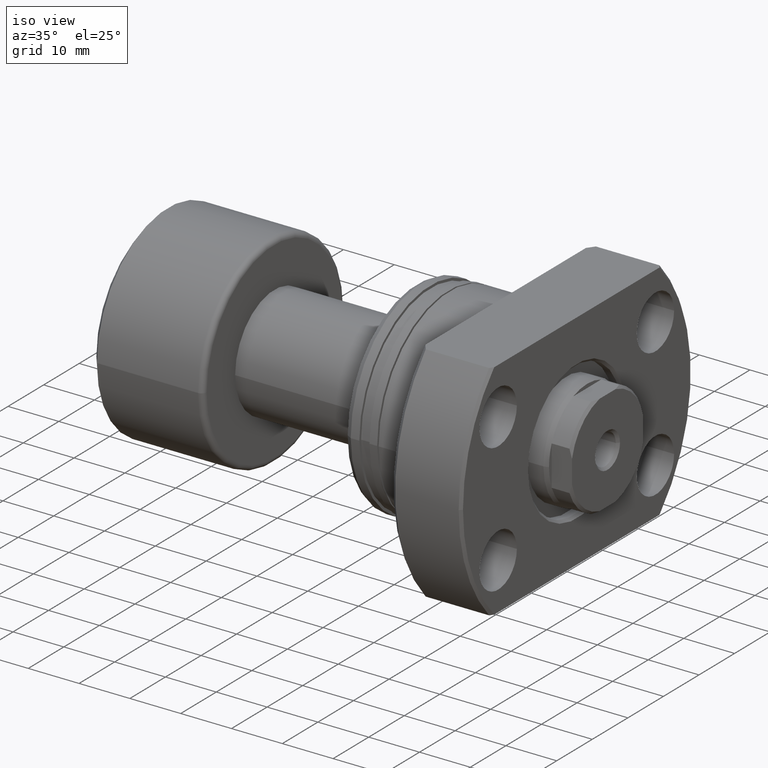
[diagram: clean part render]
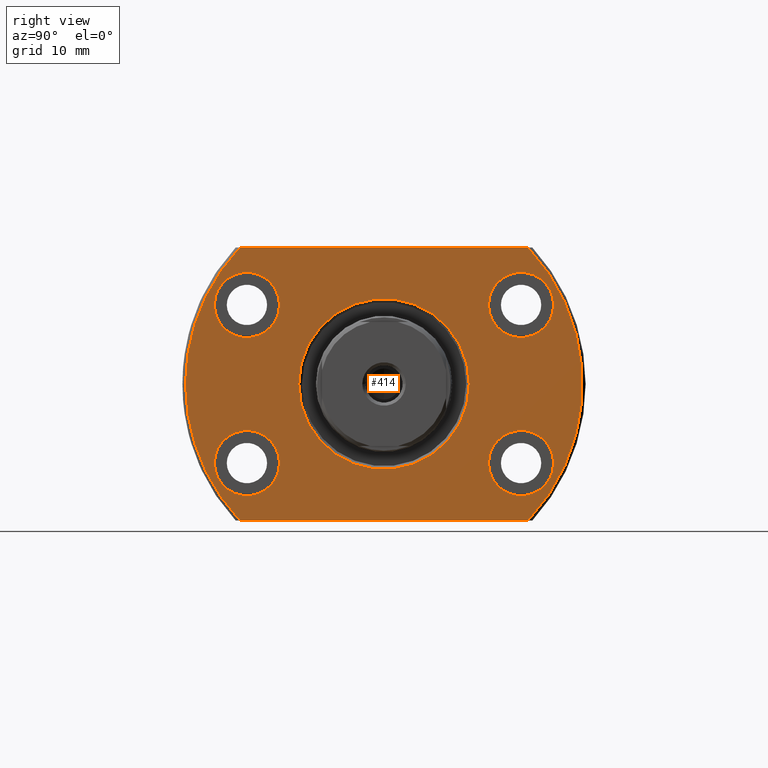
[diagram: tour spotlight — one face highlighted and labeled with its STEP entity id]
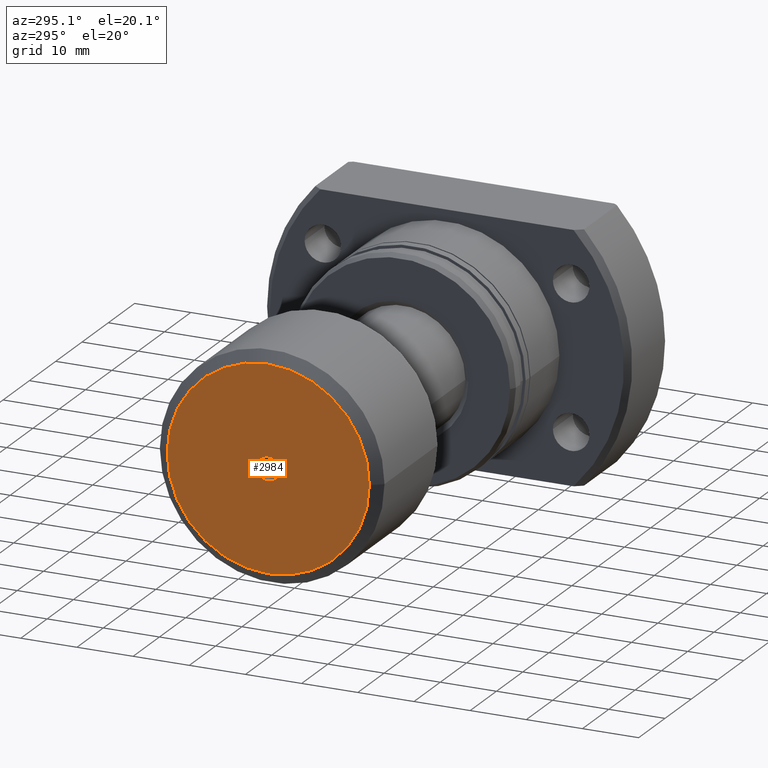
[diagram: tour spotlight — one face highlighted and labeled with its STEP entity id]
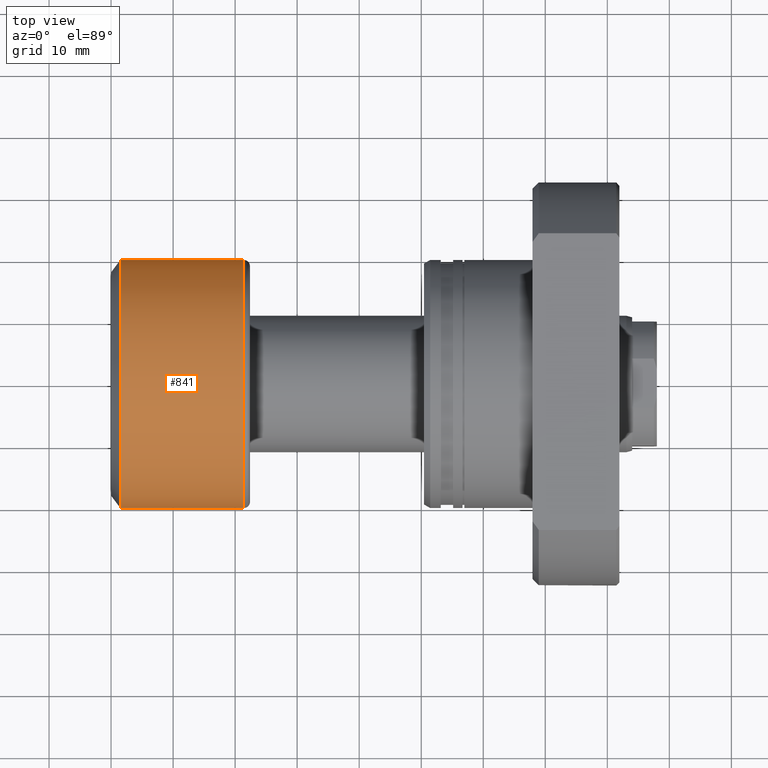
[diagram: tour spotlight — one face highlighted and labeled with its STEP entity id]
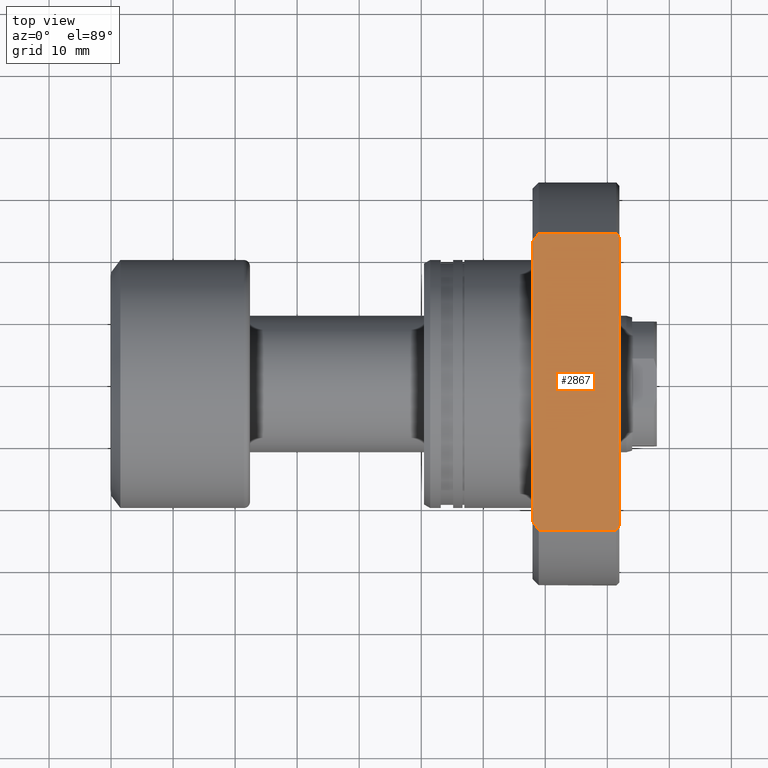
[diagram: tour spotlight — one face highlighted and labeled with its STEP entity id]
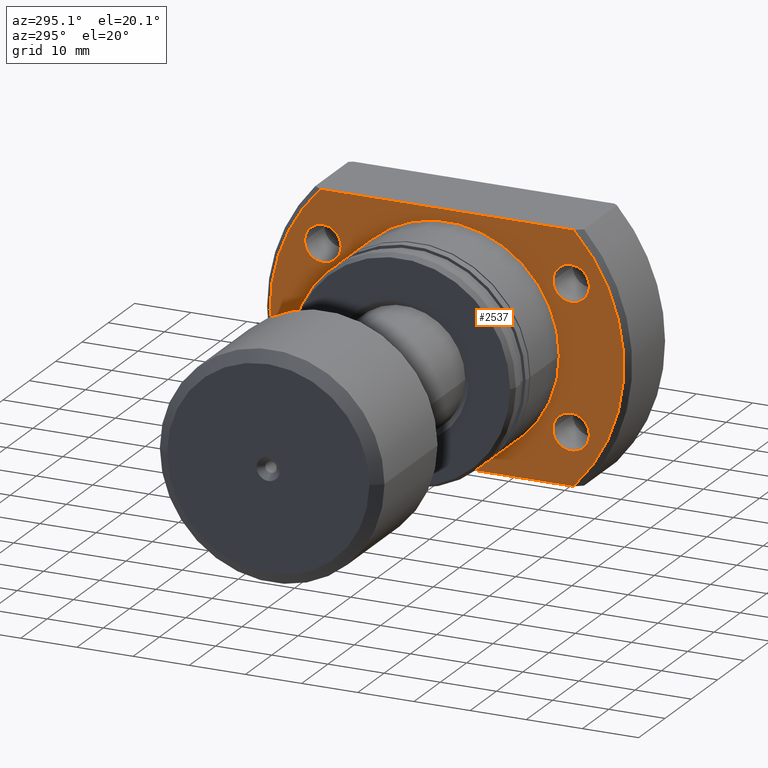
[diagram: tour spotlight — one face highlighted and labeled with its STEP entity id]
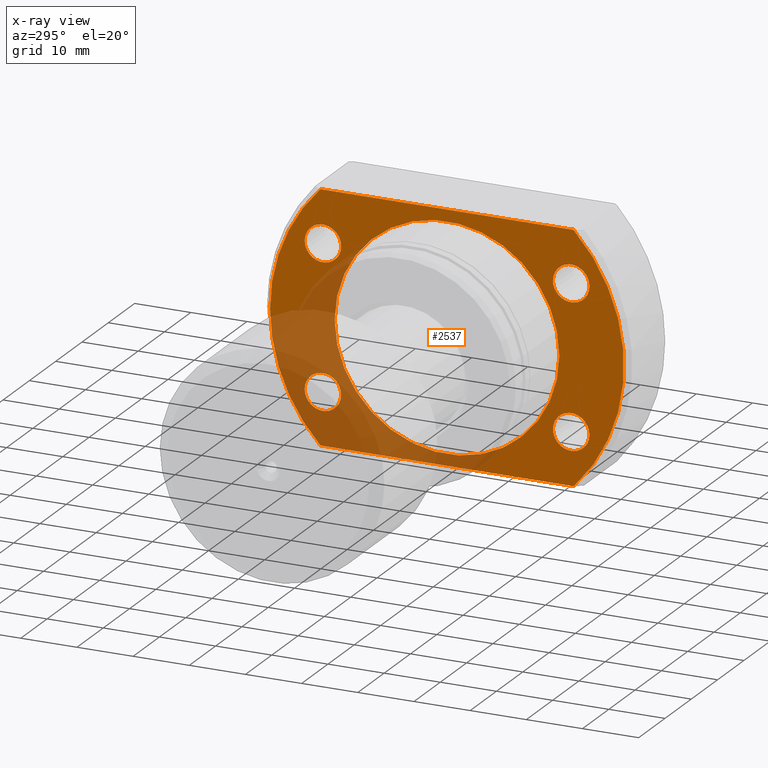
[diagram: x-ray of the same camera — body ghosted, this tour face saturated]
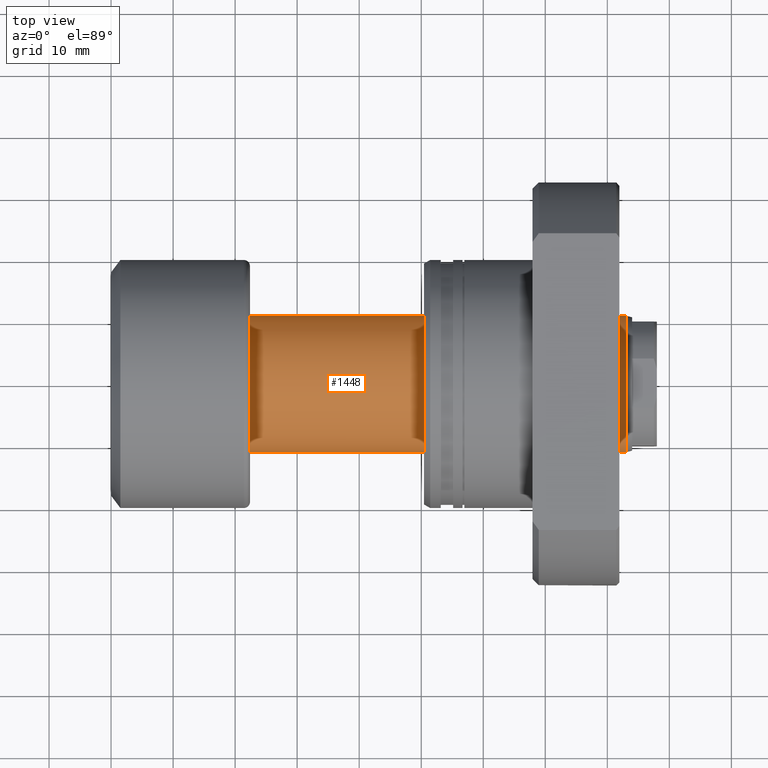
[diagram: tour spotlight — one face highlighted and labeled with its STEP entity id]
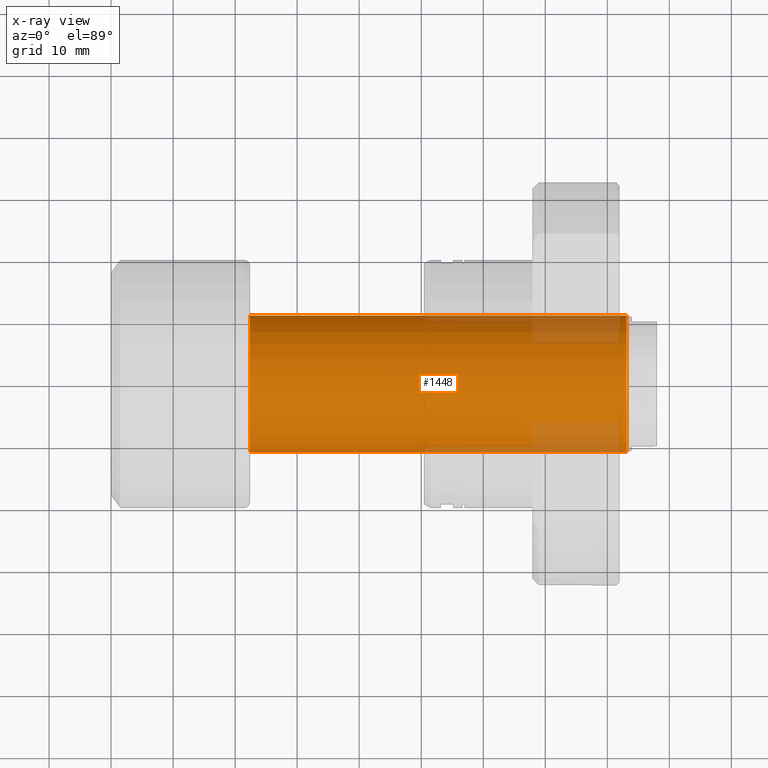
[diagram: x-ray of the same camera — body ghosted, this tour face saturated]
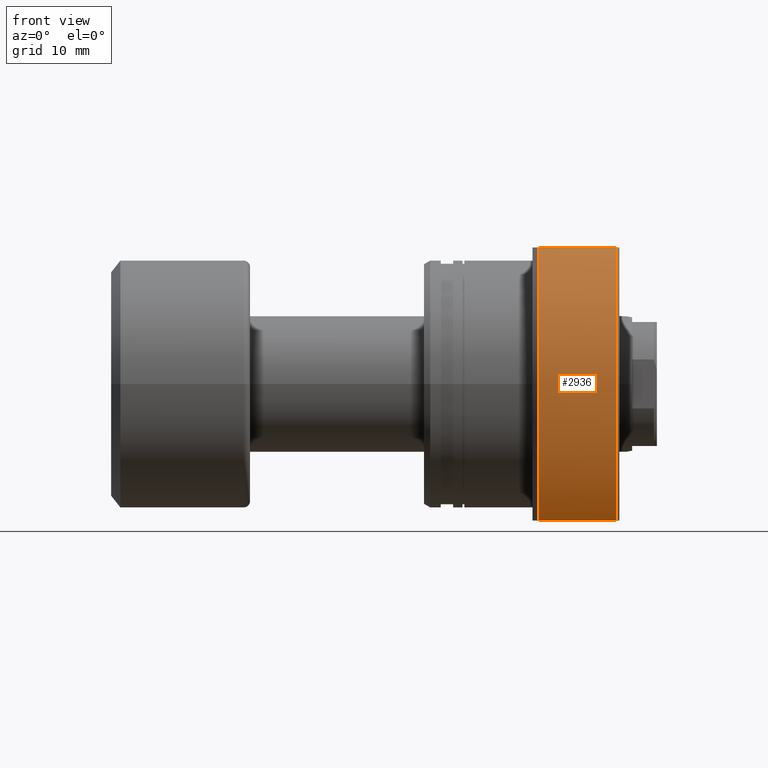
[diagram: tour spotlight — one face highlighted and labeled with its STEP entity id]
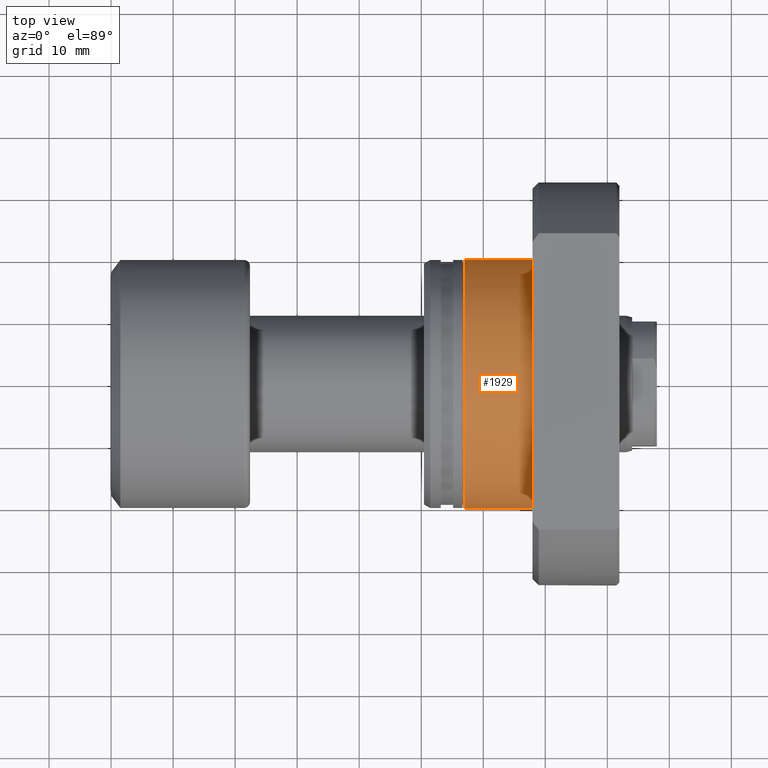
[diagram: tour spotlight — one face highlighted and labeled with its STEP entity id]
A machine part: a face-by-face anatomy tour. The part has 103 B-rep faces; the first image is the clean iso view, then the 8 largest visible faces are spotlighted one at a time (largest first), each with its STEP entity span.

Face 1 — right view, entity #414. In plain terms, the highlighted planar face has unit normal (-1, -0, 0).
Definition (entity closure, byte-faithful):
#7 = AXIS2_PLACEMENT_3D ( 'NONE', #1201, #2640, #1957 ) ;
#30 = DIRECTION ( 'NONE',  ( 1.000000000000000000, -2.887798767815668620E-14, -6.310887241768094443E-30 ) ) ;
#70 = DIRECTION ( 'NONE',  ( 1.000000000000000000, 2.721437331438560389E-17, -0.000000000000000000 ) ) ;
#72 = VERTEX_POINT ( 'NONE', #918 ) ;
#95 = EDGE_LOOP ( 'NONE', ( #1959, #946 ) ) ;
#125 = CARTESIAN_POINT ( 'NONE',  ( 31.50000000000000000, 23.23790007724450035, 22.00000000000000355 ) ) ;
#163 = AXIS2_PLACEMENT_3D ( 'NONE', #2608, #70, #1339 ) ;
#166 = ORIENTED_EDGE ( 'NONE', *, *, #1843, .F. ) ;
#183 = ORIENTED_EDGE ( 'NONE', *, *, #1244, .T. ) ;
#189 = DIRECTION ( 'NONE',  ( -1.000000000000000000, -2.721437331438560389E-17, 0.000000000000000000 ) ) ;
#208 = LINE ( 'NONE', #243, #265 ) ;
#214 = DIRECTION ( 'NONE',  ( -1.000000000000000000, -2.721437331438560389E-17, 0.000000000000000000 ) ) ;
#217 = VERTEX_POINT ( 'NONE', #2496 ) ;
#236 = ORIENTED_EDGE ( 'NONE', *, *, #2525, .F. ) ;
#243 = CARTESIAN_POINT ( 'NONE',  ( 31.50000000000000000, -32.00000000000000000, -22.00000000000000355 ) ) ;
#265 = VECTOR ( 'NONE', #2719, 1000.000000000000000 ) ;
#281 = VERTEX_POINT ( 'NONE', #787 ) ;
#294 = ORIENTED_EDGE ( 'NONE', *, *, #1725, .F. ) ;
#314 = CIRCLE ( 'NONE', #1145, 5.250000000000000888 ) ;
#414 = ADVANCED_FACE ( 'NONE', ( #1413, #1672, #1190, #2721, #3179, #496 ), #953, .F. ) ;
#429 = AXIS2_PLACEMENT_3D ( 'NONE', #2185, #189, #1405 ) ;
#431 = CIRCLE ( 'NONE', #2240, 5.250000000000000888 ) ;
#493 = ORIENTED_EDGE ( 'NONE', *, *, #1942, .T. ) ;
#496 = FACE_OUTER_BOUND ( 'NONE', #2519, .T. ) ;
#509 = VERTEX_POINT ( 'NONE', #1174 ) ;
#517 = DIRECTION ( 'NONE',  ( 2.907726969256361977E-14, 1.000000000000000000, 0.000000000000000000 ) ) ;
#573 = ORIENTED_EDGE ( 'NONE', *, *, #2699, .F. ) ;
#629 = VERTEX_POINT ( 'NONE', #741 ) ;
#637 = EDGE_CURVE ( 'NONE', #2166, #1523, #2329, .T. ) ;
#649 = VERTEX_POINT ( 'NONE', #756 ) ;
#669 = DIRECTION ( 'NONE',  ( 2.907726969256361977E-14, 1.000000000000000000, 0.000000000000000000 ) ) ;
#708 = ORIENTED_EDGE ( 'NONE', *, *, #637, .F. ) ;
#733 = EDGE_LOOP ( 'NONE', ( #236, #573 ) ) ;
#738 = AXIS2_PLACEMENT_3D ( 'NONE', #921, #1200, #1905 ) ;
#741 = CARTESIAN_POINT ( 'NONE',  ( 31.49999999999920774, -27.35000000000091092, -12.75000000000000178 ) ) ;
#756 = CARTESIAN_POINT ( 'NONE',  ( 31.50000000000000000, -23.23790007724450035, -22.00000000000000355 ) ) ;
#765 = CARTESIAN_POINT ( 'NONE',  ( 31.50000000000063949, 22.09999999999909193, 12.74999999999999822 ) ) ;
#767 = EDGE_LOOP ( 'NONE', ( #1458, #869 ) ) ;
#787 = CARTESIAN_POINT ( 'NONE',  ( 31.50000000000000000, -23.23790007724449680, 22.00000000000000355 ) ) ;
#801 = CARTESIAN_POINT ( 'NONE',  ( 31.50000000000079226, 27.34999999999909548, -12.75000000000000178 ) ) ;
#808 = DIRECTION ( 'NONE',  ( 1.000000000000000000, -2.887798767815668620E-14, -6.310887241768094443E-30 ) ) ;
#821 = EDGE_CURVE ( 'NONE', #509, #1223, #2022, .T. ) ;
#853 = CARTESIAN_POINT ( 'NONE',  ( 31.50000000000000000, 23.92174742781217489, 22.00000000000000355 ) ) ;
#869 = ORIENTED_EDGE ( 'NONE', *, *, #821, .F. ) ;
#918 = CARTESIAN_POINT ( 'NONE',  ( 31.50000000000000000, -32.00000000000000000, 0.000000000000000000 ) ) ;
#921 = CARTESIAN_POINT ( 'NONE',  ( 31.49999999999936051, -22.10000000000091092, 12.74999999999999822 ) ) ;
#927 = CARTESIAN_POINT ( 'NONE',  ( 31.50000000000000000, -13.75000000000088107, 1.683889348827607301E-15 ) ) ;
#938 = EDGE_CURVE ( 'NONE', #281, #2900, #1622, .T. ) ;
#946 = ORIENTED_EDGE ( 'NONE', *, *, #3030, .T. ) ;
#953 = PLANE ( 'NONE',  #2643 ) ;
#975 = DIRECTION ( 'NONE',  ( -1.000000000000000000, -2.721437331438560389E-17, 0.000000000000000000 ) ) ;
#995 = DIRECTION ( 'NONE',  ( 1.000000000000000000, -2.886466111666351885E-14, 0.000000000000000000 ) ) ;
#1016 = DIRECTION ( 'NONE',  ( 1.000000000000000000, 2.721437331438560389E-17, -0.000000000000000000 ) ) ;
#1078 = VERTEX_POINT ( 'NONE', #927 ) ;
#1079 = CARTESIAN_POINT ( 'NONE',  ( 31.50000000000048672, 16.84999999999909193, 12.74999999999999822 ) ) ;
#1141 = ORIENTED_EDGE ( 'NONE', *, *, #3044, .T. ) ;
#1145 = AXIS2_PLACEMENT_3D ( 'NONE', #2159, #2896, #669 ) ;
#1174 = CARTESIAN_POINT ( 'NONE',  ( 31.50000000000048672, 16.84999999999909193, -12.75000000000000178 ) ) ;
#1183 = DIRECTION ( 'NONE',  ( 0.000000000000000000, -1.000000000000000000, 0.000000000000000000 ) ) ;
#1190 = FACE_BOUND ( 'NONE', #2091, .T. ) ;
#1200 = DIRECTION ( 'NONE',  ( 1.000000000000000000, -2.887798767815668620E-14, -6.310887241768094443E-30 ) ) ;
#1201 = CARTESIAN_POINT ( 'NONE',  ( 31.50000000000000000, 8.572527594031465301E-16, 0.000000000000000000 ) ) ;
#1220 = CARTESIAN_POINT ( 'NONE',  ( 31.50000000000000000, 23.23790007724450035, -22.00000000000000355 ) ) ;
#1223 = VERTEX_POINT ( 'NONE', #801 ) ;
#1238 = DIRECTION ( 'NONE',  ( 2.907726969256361977E-14, 1.000000000000000000, 0.000000000000000000 ) ) ;
#1244 = EDGE_CURVE ( 'NONE', #281, #72, #1764, .T. ) ;
#1249 = AXIS2_PLACEMENT_3D ( 'NONE', #2169, #995, #1238 ) ;
#1256 = DIRECTION ( 'NONE',  ( 2.907726969256361977E-14, 1.000000000000000000, 0.000000000000000000 ) ) ;
#1328 = ORIENTED_EDGE ( 'NONE', *, *, #938, .F. ) ;
#1339 = DIRECTION ( 'NONE',  ( 0.000000000000000000, 1.000000000000000000, 0.000000000000000000 ) ) ;
#1351 = DIRECTION ( 'NONE',  ( -0.000000000000000000, 1.000000000000000000, 0.000000000000000000 ) ) ;
#1397 = CARTESIAN_POINT ( 'NONE',  ( 31.49999999999920774, -27.35000000000091092, 12.74999999999999822 ) ) ;
#1405 = DIRECTION ( 'NONE',  ( 0.000000000000000000, -1.000000000000000000, 0.000000000000000000 ) ) ;
#1413 = FACE_BOUND ( 'NONE', #95, .T. ) ;
#1443 = CARTESIAN_POINT ( 'NONE',  ( 31.50000000000000000, -32.00000000000000000, 0.000000000000000000 ) ) ;
#1454 = ORIENTED_EDGE ( 'NONE', *, *, #2581, .T. ) ;
#1458 = ORIENTED_EDGE ( 'NONE', *, *, #2142, .F. ) ;
#1509 = AXIS2_PLACEMENT_3D ( 'NONE', #765, #2060, #1767 ) ;
#1517 = AXIS2_PLACEMENT_3D ( 'NONE', #2500, #808, #517 ) ;
#1523 = VERTEX_POINT ( 'NONE', #2557 ) ;
#1622 = LINE ( 'NONE', #853, #2701 ) ;
#1665 = EDGE_CURVE ( 'NONE', #217, #1078, #2817, .T. ) ;
#1672 = FACE_BOUND ( 'NONE', #733, .T. ) ;
#1725 = EDGE_CURVE ( 'NONE', #1523, #2166, #3079, .T. ) ;
#1761 = AXIS2_PLACEMENT_3D ( 'NONE', #2722, #2685, #2421 ) ;
#1764 = CIRCLE ( 'NONE', #2649, 32.00000000000000000 ) ;
#1767 = DIRECTION ( 'NONE',  ( 2.907726969256361977E-14, 1.000000000000000000, 0.000000000000000000 ) ) ;
#1792 = DIRECTION ( 'NONE',  ( 1.000000000000000000, -2.887798767815668620E-14, -6.310887241768094443E-30 ) ) ;
#1798 = CARTESIAN_POINT ( 'NONE',  ( 31.50000000000000000, 8.572527594031465301E-16, 0.000000000000000000 ) ) ;
#1821 = CARTESIAN_POINT ( 'NONE',  ( 31.50000000000063949, 22.09999999999909193, -12.75000000000000178 ) ) ;
#1843 = EDGE_CURVE ( 'NONE', #3214, #629, #431, .T. ) ;
#1862 = EDGE_LOOP ( 'NONE', ( #166, #2728 ) ) ;
#1892 = CARTESIAN_POINT ( 'NONE',  ( 31.50000000000079226, 27.34999999999909548, 12.74999999999999822 ) ) ;
#1896 = EDGE_CURVE ( 'NONE', #629, #3214, #2967, .T. ) ;
#1905 = DIRECTION ( 'NONE',  ( 2.907726969256361977E-14, 1.000000000000000000, 0.000000000000000000 ) ) ;
#1924 = CIRCLE ( 'NONE', #7, 32.00000000000000000 ) ;
#1942 = EDGE_CURVE ( 'NONE', #72, #649, #2289, .T. ) ;
#1957 = DIRECTION ( 'NONE',  ( 0.000000000000000000, 1.000000000000000000, 0.000000000000000000 ) ) ;
#1959 = ORIENTED_EDGE ( 'NONE', *, *, #1665, .T. ) ;
#2022 = CIRCLE ( 'NONE', #2435, 5.250000000000000888 ) ;
#2060 = DIRECTION ( 'NONE',  ( 1.000000000000000000, -2.886466111666351885E-14, 0.000000000000000000 ) ) ;
#2091 = EDGE_LOOP ( 'NONE', ( #294, #708 ) ) ;
#2127 = AXIS2_PLACEMENT_3D ( 'NONE', #2165, #975, #1183 ) ;
#2142 = EDGE_CURVE ( 'NONE', #1223, #509, #314, .T. ) ;
#2159 = CARTESIAN_POINT ( 'NONE',  ( 31.50000000000063949, 22.09999999999909193, -12.75000000000000178 ) ) ;
#2165 = CARTESIAN_POINT ( 'NONE',  ( 31.50000000000000000, -9.092368251749008943E-13, 0.000000000000000000 ) ) ;
#2166 = VERTEX_POINT ( 'NONE', #1397 ) ;
#2169 = CARTESIAN_POINT ( 'NONE',  ( 31.50000000000063949, 22.09999999999909193, 12.74999999999999822 ) ) ;
#2185 = CARTESIAN_POINT ( 'NONE',  ( 31.50000000000000000, -9.092368251749008943E-13, 0.000000000000000000 ) ) ;
#2193 = DIRECTION ( 'NONE',  ( 2.721437331438560389E-17, -1.000000000000000000, 0.000000000000000000 ) ) ;
#2240 = AXIS2_PLACEMENT_3D ( 'NONE', #2528, #1792, #2263 ) ;
#2263 = DIRECTION ( 'NONE',  ( 2.907726969256361977E-14, 1.000000000000000000, 0.000000000000000000 ) ) ;
#2278 = CARTESIAN_POINT ( 'NONE',  ( 31.49999999999951328, -16.85000000000091092, -12.75000000000000178 ) ) ;
#2289 = CIRCLE ( 'NONE', #163, 32.00000000000000000 ) ;
#2329 = CIRCLE ( 'NONE', #1761, 5.250000000000000888 ) ;
#2344 = VERTEX_POINT ( 'NONE', #1079 ) ;
#2421 = DIRECTION ( 'NONE',  ( 2.907726969256361977E-14, 1.000000000000000000, 0.000000000000000000 ) ) ;
#2435 = AXIS2_PLACEMENT_3D ( 'NONE', #1821, #30, #1256 ) ;
#2496 = CARTESIAN_POINT ( 'NONE',  ( 31.50000000000000000, 13.74999999999826805, 0.000000000000000000 ) ) ;
#2500 = CARTESIAN_POINT ( 'NONE',  ( 31.49999999999936051, -22.10000000000091092, -12.75000000000000178 ) ) ;
#2519 = EDGE_LOOP ( 'NONE', ( #1328, #183, #493, #1454, #1141 ) ) ;
#2525 = EDGE_CURVE ( 'NONE', #2840, #2344, #3122, .T. ) ;
#2528 = CARTESIAN_POINT ( 'NONE',  ( 31.49999999999936051, -22.10000000000091092, -12.75000000000000178 ) ) ;
#2557 = CARTESIAN_POINT ( 'NONE',  ( 31.49999999999951328, -16.85000000000091092, 12.74999999999999822 ) ) ;
#2581 = EDGE_CURVE ( 'NONE', #649, #2966, #208, .T. ) ;
#2608 = CARTESIAN_POINT ( 'NONE',  ( 31.50000000000000000, 8.572527594031465301E-16, 0.000000000000000000 ) ) ;
#2640 = DIRECTION ( 'NONE',  ( 1.000000000000000000, 2.721437331438560389E-17, -0.000000000000000000 ) ) ;
#2643 = AXIS2_PLACEMENT_3D ( 'NONE', #1443, #214, #2193 ) ;
#2649 = AXIS2_PLACEMENT_3D ( 'NONE', #1798, #1016, #2782 ) ;
#2685 = DIRECTION ( 'NONE',  ( 1.000000000000000000, -2.887798767815668620E-14, -6.310887241768094443E-30 ) ) ;
#2699 = EDGE_CURVE ( 'NONE', #2344, #2840, #2910, .T. ) ;
#2701 = VECTOR ( 'NONE', #1351, 1000.000000000000000 ) ;
#2719 = DIRECTION ( 'NONE',  ( -2.721437331438560389E-17, 1.000000000000000000, -0.000000000000000000 ) ) ;
#2721 = FACE_BOUND ( 'NONE', #1862, .T. ) ;
#2722 = CARTESIAN_POINT ( 'NONE',  ( 31.49999999999936051, -22.10000000000091092, 12.74999999999999822 ) ) ;
#2728 = ORIENTED_EDGE ( 'NONE', *, *, #1896, .F. ) ;
#2782 = DIRECTION ( 'NONE',  ( 0.000000000000000000, 1.000000000000000000, 0.000000000000000000 ) ) ;
#2817 = CIRCLE ( 'NONE', #429, 13.74999999999917577 ) ;
#2840 = VERTEX_POINT ( 'NONE', #1892 ) ;
#2896 = DIRECTION ( 'NONE',  ( 1.000000000000000000, -2.887798767815668620E-14, -6.310887241768094443E-30 ) ) ;
#2900 = VERTEX_POINT ( 'NONE', #125 ) ;
#2910 = CIRCLE ( 'NONE', #1509, 5.250000000000000888 ) ;
#2966 = VERTEX_POINT ( 'NONE', #1220 ) ;
#2967 = CIRCLE ( 'NONE', #1517, 5.250000000000000888 ) ;
#3030 = EDGE_CURVE ( 'NONE', #1078, #217, #3182, .T. ) ;
#3044 = EDGE_CURVE ( 'NONE', #2966, #2900, #1924, .T. ) ;
#3079 = CIRCLE ( 'NONE', #738, 5.250000000000000888 ) ;
#3122 = CIRCLE ( 'NONE', #1249, 5.250000000000000888 ) ;
#3179 = FACE_BOUND ( 'NONE', #767, .T. ) ;
#3182 = CIRCLE ( 'NONE', #2127, 13.74999999999917577 ) ;
#3214 = VERTEX_POINT ( 'NONE', #2278 ) ;

Face 2 — auxiliary view, entity #2984. In plain terms, the highlighted planar face has unit normal (-1, -0, 0).
Definition (entity closure, byte-faithful):
#15 = VERTEX_POINT ( 'NONE', #935 ) ;
#111 = AXIS2_PLACEMENT_3D ( 'NONE', #2216, #1699, #2413 ) ;
#114 = EDGE_LOOP ( 'NONE', ( #1181, #380 ) ) ;
#380 = ORIENTED_EDGE ( 'NONE', *, *, #1056, .T. ) ;
#449 = ORIENTED_EDGE ( 'NONE', *, *, #1753, .T. ) ;
#661 = FACE_OUTER_BOUND ( 'NONE', #114, .T. ) ;
#811 = ORIENTED_EDGE ( 'NONE', *, *, #1098, .T. ) ;
#839 = CIRCLE ( 'NONE', #2861, 18.00000000000000355 ) ;
#923 = VERTEX_POINT ( 'NONE', #1125 ) ;
#935 = CARTESIAN_POINT ( 'NONE',  ( 1.005923310246402065E-15, 0.000000000000000000, 2.074999999999993516 ) ) ;
#961 = CARTESIAN_POINT ( 'NONE',  ( 1.005923310246402065E-15, 0.000000000000000000, 0.000000000000000000 ) ) ;
#1056 = EDGE_CURVE ( 'NONE', #2134, #1059, #839, .T. ) ;
#1059 = VERTEX_POINT ( 'NONE', #2939 ) ;
#1098 = EDGE_CURVE ( 'NONE', #15, #923, #2705, .T. ) ;
#1125 = CARTESIAN_POINT ( 'NONE',  ( 1.005923310246402065E-15, 2.541142108230750183E-16, -2.074999999999993516 ) ) ;
#1159 = CARTESIAN_POINT ( 'NONE',  ( 2.011846620492804129E-15, 2.151755106128676308E-32, 0.000000000000000000 ) ) ;
#1181 = ORIENTED_EDGE ( 'NONE', *, *, #2461, .T. ) ;
#1684 = FACE_BOUND ( 'NONE', #2470, .T. ) ;
#1699 = DIRECTION ( 'NONE',  ( -1.000000000000000000, -1.069542322069065801E-17, 0.000000000000000000 ) ) ;
#1704 = DIRECTION ( 'NONE',  ( 1.069542322069068574E-17, -1.000000000000000000, 0.000000000000000000 ) ) ;
#1753 = EDGE_CURVE ( 'NONE', #923, #15, #2911, .T. ) ;
#1943 = DIRECTION ( 'NONE',  ( 1.000000000000000000, 1.069542322069065801E-17, 0.000000000000000000 ) ) ;
#2083 = AXIS2_PLACEMENT_3D ( 'NONE', #961, #1943, #2445 ) ;
#2122 = AXIS2_PLACEMENT_3D ( 'NONE', #2669, #2647, #1704 ) ;
#2134 = VERTEX_POINT ( 'NONE', #3186 ) ;
#2140 = DIRECTION ( 'NONE',  ( 1.069542322069065647E-17, -1.000000000000000000, 0.000000000000000000 ) ) ;
#2153 = CARTESIAN_POINT ( 'NONE',  ( 2.011846620492804129E-15, 2.151755106128676308E-32, 0.000000000000000000 ) ) ;
#2216 = CARTESIAN_POINT ( 'NONE',  ( 1.005923310246402065E-15, 1.075877553064338154E-32, 0.000000000000000000 ) ) ;
#2285 = AXIS2_PLACEMENT_3D ( 'NONE', #1159, #2890, #2140 ) ;
#2413 = DIRECTION ( 'NONE',  ( 1.069542322069065801E-17, -1.000000000000000000, 0.000000000000000000 ) ) ;
#2445 = DIRECTION ( 'NONE',  ( 1.069542322069068574E-17, -1.000000000000000000, 0.000000000000000000 ) ) ;
#2461 = EDGE_CURVE ( 'NONE', #1059, #2134, #3011, .T. ) ;
#2470 = EDGE_LOOP ( 'NONE', ( #811, #449 ) ) ;
#2647 = DIRECTION ( 'NONE',  ( 1.000000000000000000, 1.069542322069065801E-17, 0.000000000000000000 ) ) ;
#2669 = CARTESIAN_POINT ( 'NONE',  ( 1.005923310246402065E-15, 0.000000000000000000, 0.000000000000000000 ) ) ;
#2705 = CIRCLE ( 'NONE', #2122, 2.074999999999993516 ) ;
#2720 = DIRECTION ( 'NONE',  ( 1.069542322069065647E-17, -1.000000000000000000, 0.000000000000000000 ) ) ;
#2861 = AXIS2_PLACEMENT_3D ( 'NONE', #2153, #3154, #2720 ) ;
#2890 = DIRECTION ( 'NONE',  ( -1.000000000000000000, -1.069542322069065801E-17, -0.000000000000000000 ) ) ;
#2911 = CIRCLE ( 'NONE', #2083, 2.074999999999993516 ) ;
#2939 = CARTESIAN_POINT ( 'NONE',  ( 1.819329002520372041E-15, 18.00000000000000355, 0.000000000000000000 ) ) ;
#2984 = ADVANCED_FACE ( 'NONE', ( #1684, #661 ), #3191, .T. ) ;
#3011 = CIRCLE ( 'NONE', #2285, 18.00000000000000355 ) ;
#3154 = DIRECTION ( 'NONE',  ( -1.000000000000000000, -1.069542322069065801E-17, -0.000000000000000000 ) ) ;
#3186 = CARTESIAN_POINT ( 'NONE',  ( 2.204364238465235822E-15, -18.00000000000000355, 2.326828918379971365E-15 ) ) ;
#3191 = PLANE ( 'NONE',  #111 ) ;

Face 3 — top view, entity #841. In plain terms, the highlighted cylindrical surface (partial cylindrical patch) has radius 20 mm, axis along (-1, -0, -0).
Definition (entity closure, byte-faithful):
#43 = CARTESIAN_POINT ( 'NONE',  ( 2.139084644138131786E-16, -20.00000000000000000, 0.000000000000000000 ) ) ;
#263 = VECTOR ( 'NONE', #805, 1000.000000000000000 ) ;
#323 = CIRCLE ( 'NONE', #2128, 20.00000000000000000 ) ;
#338 = DIRECTION ( 'NONE',  ( 0.000000000000000000, -1.000000000000000000, 0.000000000000000000 ) ) ;
#604 = DIRECTION ( 'NONE',  ( 1.084202172485504434E-17, -1.000000000000000000, 0.000000000000000000 ) ) ;
#663 = DIRECTION ( 'NONE',  ( -1.000000000000000000, -1.069542322069065801E-17, -0.000000000000000000 ) ) ;
#805 = DIRECTION ( 'NONE',  ( -1.000000000000000000, -1.069542322069065801E-17, -0.000000000000000000 ) ) ;
#841 = ADVANCED_FACE ( 'NONE', ( #1562 ), #2000, .T. ) ;
#874 = EDGE_CURVE ( 'NONE', #2018, #2988, #2272, .T. ) ;
#1040 = ORIENTED_EDGE ( 'NONE', *, *, #1986, .T. ) ;
#1055 = VECTOR ( 'NONE', #663, 1000.000000000000000 ) ;
#1153 = CARTESIAN_POINT ( 'NONE',  ( 1.500000000000002442, 1.604313483103601552E-17, 0.000000000000000000 ) ) ;
#1562 = FACE_OUTER_BOUND ( 'NONE', #2611, .T. ) ;
#1564 = AXIS2_PLACEMENT_3D ( 'NONE', #1153, #2361, #604 ) ;
#1772 = DIRECTION ( 'NONE',  ( -1.000000000000000000, -1.069542322069065801E-17, -0.000000000000000000 ) ) ;
#1786 = VERTEX_POINT ( 'NONE', #2773 ) ;
#1986 = EDGE_CURVE ( 'NONE', #2018, #2336, #323, .T. ) ;
#2000 = CYLINDRICAL_SURFACE ( 'NONE', #2808, 20.00000000000000000 ) ;
#2018 = VERTEX_POINT ( 'NONE', #2851 ) ;
#2055 = CARTESIAN_POINT ( 'NONE',  ( 21.40000000000000213, 2.288820569227801297E-16, 0.000000000000000000 ) ) ;
#2128 = AXIS2_PLACEMENT_3D ( 'NONE', #2055, #2355, #338 ) ;
#2272 = LINE ( 'NONE', #43, #263 ) ;
#2336 = VERTEX_POINT ( 'NONE', #2798 ) ;
#2355 = DIRECTION ( 'NONE',  ( -1.000000000000000000, -1.069542322069065801E-17, -0.000000000000000000 ) ) ;
#2361 = DIRECTION ( 'NONE',  ( -1.000000000000000000, -1.069542322069065801E-17, -0.000000000000000000 ) ) ;
#2370 = EDGE_CURVE ( 'NONE', #2336, #1786, #2583, .T. ) ;
#2428 = CARTESIAN_POINT ( 'NONE',  ( 1.500000000000002887, -20.00000000000000000, 2.449293598294706513E-15 ) ) ;
#2450 = ORIENTED_EDGE ( 'NONE', *, *, #2841, .F. ) ;
#2524 = DIRECTION ( 'NONE',  ( 1.069542322069065955E-17, -1.000000000000000000, 0.000000000000000000 ) ) ;
#2549 = CIRCLE ( 'NONE', #1564, 20.00000000000000000 ) ;
#2556 = CARTESIAN_POINT ( 'NONE',  ( 0.000000000000000000, 0.000000000000000000, 0.000000000000000000 ) ) ;
#2583 = LINE ( 'NONE', #3094, #1055 ) ;
#2611 = EDGE_LOOP ( 'NONE', ( #1040, #2745, #2450, #3029 ) ) ;
#2745 = ORIENTED_EDGE ( 'NONE', *, *, #2370, .T. ) ;
#2773 = CARTESIAN_POINT ( 'NONE',  ( 1.500000000000002442, 20.00000000000000000, 0.000000000000000000 ) ) ;
#2798 = CARTESIAN_POINT ( 'NONE',  ( 21.40000000000000213, 20.00000000000000000, 2.449293598294706513E-15 ) ) ;
#2808 = AXIS2_PLACEMENT_3D ( 'NONE', #2556, #1772, #2524 ) ;
#2841 = EDGE_CURVE ( 'NONE', #2988, #1786, #2549, .T. ) ;
#2851 = CARTESIAN_POINT ( 'NONE',  ( 21.40000000000000213, -20.00000000000000000, 0.000000000000000000 ) ) ;
#2988 = VERTEX_POINT ( 'NONE', #2428 ) ;
#3029 = ORIENTED_EDGE ( 'NONE', *, *, #874, .F. ) ;
#3094 = CARTESIAN_POINT ( 'NONE',  ( -2.139084644138131786E-16, 20.00000000000000000, 2.449293598294706513E-15 ) ) ;

Face 4 — top view, entity #2867. In plain terms, the highlighted planar face has unit normal (0, 0, 1).
Definition (entity closure, byte-faithful):
#55 = CARTESIAN_POINT ( 'NONE',  ( 17.50000000000000355, 22.54440063519089676, 22.00000000000000355 ) ) ;
#102 = CARTESIAN_POINT ( 'NONE',  ( 31.00000000000007461, 23.92174742781126895, 21.99999999999998934 ) ) ;
#125 = CARTESIAN_POINT ( 'NONE',  ( 31.50000000000000000, 23.23790007724450035, 22.00000000000000355 ) ) ;
#185 = CARTESIAN_POINT ( 'NONE',  ( 18.49999999999998934, 23.92174742781163133, 21.99999999999998934 ) ) ;
#230 = LINE ( 'NONE', #719, #3112 ) ;
#281 = VERTEX_POINT ( 'NONE', #787 ) ;
#356 = CARTESIAN_POINT ( 'NONE',  ( 18.49999999999998934, 23.92174742781163133, 21.99999999999998934 ) ) ;
#362 = EDGE_CURVE ( 'NONE', #3218, #2907, #230, .T. ) ;
#370 = ORIENTED_EDGE ( 'NONE', *, *, #2899, .T. ) ;
#375 = CARTESIAN_POINT ( 'NONE',  ( 17.50000000000001776, -22.54440063519093940, 22.00000000000000355 ) ) ;
#395 = ORIENTED_EDGE ( 'NONE', *, *, #2858, .T. ) ;
#596 = CARTESIAN_POINT ( 'NONE',  ( 31.33407032320117125, -23.46639532164749298, 22.00000000000000355 ) ) ;
#654 = EDGE_CURVE ( 'NONE', #2206, #1898, #707, .T. ) ;
#691 = ORIENTED_EDGE ( 'NONE', *, *, #796, .F. ) ;
#707 = LINE ( 'NONE', #1445, #781 ) ;
#719 = CARTESIAN_POINT ( 'NONE',  ( 17.50000000000000000, -19.99999999999999645, 22.00000000000000355 ) ) ;
#777 = EDGE_CURVE ( 'NONE', #1898, #281, #2377, .T. ) ;
#781 = VECTOR ( 'NONE', #1914, 1000.000000000000000 ) ;
#787 = CARTESIAN_POINT ( 'NONE',  ( 31.50000000000000000, -23.23790007724449680, 22.00000000000000355 ) ) ;
#796 = EDGE_CURVE ( 'NONE', #2215, #2609, #2013, .T. ) ;
#853 = CARTESIAN_POINT ( 'NONE',  ( 31.50000000000000000, 23.92174742781217489, 22.00000000000000355 ) ) ;
#938 = EDGE_CURVE ( 'NONE', #281, #2900, #1622, .T. ) ;
#1032 = CARTESIAN_POINT ( 'NONE',  ( 31.33413051841647246, 23.46631242917946381, 22.00000000000000355 ) ) ;
#1048 = CARTESIAN_POINT ( 'NONE',  ( -2.498001805406602216E-13, 23.92174742781216423, 21.99999999999998934 ) ) ;
#1068 = CARTESIAN_POINT ( 'NONE',  ( 31.16744843440999091, 23.69425258719626370, 22.00000000000000355 ) ) ;
#1089 = CARTESIAN_POINT ( 'NONE',  ( 17.50000000000000355, 22.54440063519089676, 22.00000000000000355 ) ) ;
#1106 = ORIENTED_EDGE ( 'NONE', *, *, #654, .T. ) ;
#1342 = FACE_OUTER_BOUND ( 'NONE', #1890, .T. ) ;
#1351 = DIRECTION ( 'NONE',  ( -0.000000000000000000, 1.000000000000000000, 0.000000000000000000 ) ) ;
#1387 = CARTESIAN_POINT ( 'NONE',  ( -2.498001805406602216E-13, 23.92174742781217489, 22.00000000000000355 ) ) ;
#1408 = B_SPLINE_CURVE_WITH_KNOTS ( 'NONE', 3,
 ( #375, #1586, #1630, #2830 ),
 .UNSPECIFIED., .F., .F.,
 ( 4, 4 ),
 ( 0.08934887722955515976, 0.09106053602301780736 ),
 .UNSPECIFIED. ) ;
#1445 = CARTESIAN_POINT ( 'NONE',  ( -1.637578961322105897E-12, -23.92174742781035945, 22.00000000000001066 ) ) ;
#1475 = CARTESIAN_POINT ( 'NONE',  ( 31.00000000000007461, -23.92174742781125474, 22.00000000000001066 ) ) ;
#1478 = ORIENTED_EDGE ( 'NONE', *, *, #938, .T. ) ;
#1537 = ORIENTED_EDGE ( 'NONE', *, *, #362, .T. ) ;
#1542 = CARTESIAN_POINT ( 'NONE',  ( 31.50000000000000000, -23.23790007724449680, 22.00000000000000355 ) ) ;
#1545 = EDGE_CURVE ( 'NONE', #2900, #2609, #2459, .T. ) ;
#1586 = CARTESIAN_POINT ( 'NONE',  ( 17.82998096711740033, -23.00546414414808183, 22.00000000000000355 ) ) ;
#1616 = CARTESIAN_POINT ( 'NONE',  ( 17.50000000000001776, -22.54440063519093940, 22.00000000000000355 ) ) ;
#1622 = LINE ( 'NONE', #853, #2701 ) ;
#1630 = CARTESIAN_POINT ( 'NONE',  ( 18.16344437228347886, -23.46450416271138906, 22.00000000000000355 ) ) ;
#1802 = DIRECTION ( 'NONE',  ( 1.000000000000000000, -2.886466111666351885E-14, -0.000000000000000000 ) ) ;
#1844 = DIRECTION ( 'NONE',  ( 1.000000000000000000, 0.000000000000000000, -0.000000000000000000 ) ) ;
#1854 = DIRECTION ( 'NONE',  ( 0.000000000000000000, 0.000000000000000000, 1.000000000000000000 ) ) ;
#1890 = EDGE_LOOP ( 'NONE', ( #395, #1537, #370, #1106, #3022, #1478, #2653, #691 ) ) ;
#1898 = VERTEX_POINT ( 'NONE', #1475 ) ;
#1914 = DIRECTION ( 'NONE',  ( 1.000000000000000000, -2.886466111666351885E-14, -0.000000000000000000 ) ) ;
#1949 = B_SPLINE_CURVE_WITH_KNOTS ( 'NONE', 3,
 ( #356, #2136, #2314, #1089 ),
 .UNSPECIFIED., .F., .F.,
 ( 4, 4 ),
 ( 0.03779752499755586331, 0.03950166028446448763 ),
 .UNSPECIFIED. ) ;
#2013 = LINE ( 'NONE', #1048, #3071 ) ;
#2053 = CARTESIAN_POINT ( 'NONE',  ( 31.16738888422669262, -23.69433349186106597, 22.00000000000000355 ) ) ;
#2066 = CARTESIAN_POINT ( 'NONE',  ( 31.00000000000007461, -23.92174742781125474, 22.00000000000001066 ) ) ;
#2073 = PLANE ( 'NONE',  #2339 ) ;
#2136 = CARTESIAN_POINT ( 'NONE',  ( 18.16368991444090497, 23.46483775540317041, 22.00000000000000355 ) ) ;
#2195 = CARTESIAN_POINT ( 'NONE',  ( 18.49999999999998934, -23.92174742781089591, 22.00000000000001066 ) ) ;
#2206 = VERTEX_POINT ( 'NONE', #2195 ) ;
#2209 = DIRECTION ( 'NONE',  ( 2.721437331438560389E-17, -1.000000000000000000, 0.000000000000000000 ) ) ;
#2215 = VERTEX_POINT ( 'NONE', #185 ) ;
#2314 = CARTESIAN_POINT ( 'NONE',  ( 17.83023180395318263, 23.00581462409452982, 22.00000000000000355 ) ) ;
#2339 = AXIS2_PLACEMENT_3D ( 'NONE', #1387, #1854, #1844 ) ;
#2377 = B_SPLINE_CURVE_WITH_KNOTS ( 'NONE', 3,
 ( #2066, #2053, #596, #1542 ),
 .UNSPECIFIED., .F., .F.,
 ( 4, 4 ),
 ( 0.03779112510166918876, 0.03863931077161771033 ),
 .UNSPECIFIED. ) ;
#2459 = B_SPLINE_CURVE_WITH_KNOTS ( 'NONE', 3,
 ( #2789, #1032, #1068, #102 ),
 .UNSPECIFIED., .F., .F.,
 ( 4, 4 ),
 ( 0.09020251661949948985, 0.09105413011805403578 ),
 .UNSPECIFIED. ) ;
#2609 = VERTEX_POINT ( 'NONE', #2975 ) ;
#2653 = ORIENTED_EDGE ( 'NONE', *, *, #1545, .T. ) ;
#2701 = VECTOR ( 'NONE', #1351, 1000.000000000000000 ) ;
#2789 = CARTESIAN_POINT ( 'NONE',  ( 31.50000000000000000, 23.23790007724450035, 22.00000000000000355 ) ) ;
#2830 = CARTESIAN_POINT ( 'NONE',  ( 18.49999999999998934, -23.92174742781089591, 22.00000000000001066 ) ) ;
#2858 = EDGE_CURVE ( 'NONE', #2215, #3218, #1949, .T. ) ;
#2867 = ADVANCED_FACE ( 'NONE', ( #1342 ), #2073, .T. ) ;
#2899 = EDGE_CURVE ( 'NONE', #2907, #2206, #1408, .T. ) ;
#2900 = VERTEX_POINT ( 'NONE', #125 ) ;
#2907 = VERTEX_POINT ( 'NONE', #1616 ) ;
#2975 = CARTESIAN_POINT ( 'NONE',  ( 31.00000000000007461, 23.92174742781126895, 21.99999999999998934 ) ) ;
#3022 = ORIENTED_EDGE ( 'NONE', *, *, #777, .T. ) ;
#3071 = VECTOR ( 'NONE', #1802, 1000.000000000000000 ) ;
#3112 = VECTOR ( 'NONE', #2209, 1000.000000000000000 ) ;
#3218 = VERTEX_POINT ( 'NONE', #55 ) ;

Face 5 — auxiliary view, entity #2537. An x-ray twin of the same camera follows (body ghosted, this face saturated) — the face is partly hidden behind the body. In plain terms, the highlighted planar face has unit normal (1, 0, 0).
Definition (entity closure, byte-faithful):
#14 = CARTESIAN_POINT ( 'NONE',  ( 17.50000000000000000, 22.09999999999949338, 12.74999999999999822 ) ) ;
#41 = ORIENTED_EDGE ( 'NONE', *, *, #2096, .T. ) ;
#55 = CARTESIAN_POINT ( 'NONE',  ( 17.50000000000000355, 22.54440063519089676, 22.00000000000000355 ) ) ;
#75 = VERTEX_POINT ( 'NONE', #267 ) ;
#78 = CARTESIAN_POINT ( 'NONE',  ( 17.50000000000000000, 18.84999999999949694, -12.75000000000000178 ) ) ;
#174 = EDGE_CURVE ( 'NONE', #1554, #251, #776, .T. ) ;
#176 = ORIENTED_EDGE ( 'NONE', *, *, #815, .F. ) ;
#191 = ORIENTED_EDGE ( 'NONE', *, *, #1958, .T. ) ;
#193 = FACE_BOUND ( 'NONE', #2831, .T. ) ;
#199 = EDGE_CURVE ( 'NONE', #1751, #426, #1191, .T. ) ;
#203 = CARTESIAN_POINT ( 'NONE',  ( 17.50000000000000000, 19.99999999999999645, 0.000000000000000000 ) ) ;
#228 = CARTESIAN_POINT ( 'NONE',  ( 17.50000000000000000, 25.34999999999949338, -12.75000000000000178 ) ) ;
#230 = LINE ( 'NONE', #719, #3112 ) ;
#246 = DIRECTION ( 'NONE',  ( 1.000000000000000000, 2.721437331438560389E-17, -0.000000000000000000 ) ) ;
#251 = VERTEX_POINT ( 'NONE', #2753 ) ;
#267 = CARTESIAN_POINT ( 'NONE',  ( 17.50000000000000355, 22.54440063519089676, -22.00000000000000355 ) ) ;
#268 = CIRCLE ( 'NONE', #376, 3.249999999999999556 ) ;
#329 = EDGE_LOOP ( 'NONE', ( #798, #1164 ) ) ;
#362 = EDGE_CURVE ( 'NONE', #3218, #2907, #230, .T. ) ;
#376 = AXIS2_PLACEMENT_3D ( 'NONE', #2987, #1793, #2999 ) ;
#411 = AXIS2_PLACEMENT_3D ( 'NONE', #514, #1498, #1008 ) ;
#424 = CIRCLE ( 'NONE', #2385, 3.249999999999999556 ) ;
#426 = VERTEX_POINT ( 'NONE', #3129 ) ;
#443 = ORIENTED_EDGE ( 'NONE', *, *, #2020, .F. ) ;
#473 = CARTESIAN_POINT ( 'NONE',  ( 17.50000000000000000, -19.99999999999999645, 0.000000000000000000 ) ) ;
#479 = CIRCLE ( 'NONE', #2600, 3.249999999999999556 ) ;
#485 = DIRECTION ( 'NONE',  ( 2.721437331438560389E-17, -1.000000000000000000, 0.000000000000000000 ) ) ;
#490 = CARTESIAN_POINT ( 'NONE',  ( 17.50000000000000000, -25.35000000000050591, 12.74999999999999822 ) ) ;
#504 = CARTESIAN_POINT ( 'NONE',  ( 17.50000000000000355, 31.49999999999993250, 0.000000000000000000 ) ) ;
#514 = CARTESIAN_POINT ( 'NONE',  ( 17.50000000000000000, 4.762515330017480942E-16, 0.000000000000000000 ) ) ;
#532 = CIRCLE ( 'NONE', #1667, 31.49999999999993250 ) ;
#538 = ORIENTED_EDGE ( 'NONE', *, *, #199, .T. ) ;
#552 = DIRECTION ( 'NONE',  ( 1.000000000000000000, 2.721437331438560389E-17, -0.000000000000000000 ) ) ;
#565 = CARTESIAN_POINT ( 'NONE',  ( 17.50000000000000000, -25.35000000000050591, -12.75000000000000178 ) ) ;
#571 = DIRECTION ( 'NONE',  ( 0.000000000000000000, 1.000000000000000000, 0.000000000000000000 ) ) ;
#576 = CARTESIAN_POINT ( 'NONE',  ( 17.50000000000000355, 4.762515330017481928E-16, 0.000000000000000000 ) ) ;
#578 = CIRCLE ( 'NONE', #2119, 31.49999999999993250 ) ;
#600 = EDGE_CURVE ( 'NONE', #3093, #2587, #1502, .T. ) ;
#606 = DIRECTION ( 'NONE',  ( 1.000000000000000000, 2.721437331438560389E-17, -0.000000000000000000 ) ) ;
#625 = DIRECTION ( 'NONE',  ( 1.000000000000000000, 2.721437331438560389E-17, -0.000000000000000000 ) ) ;
#703 = EDGE_LOOP ( 'NONE', ( #1347, #1590 ) ) ;
#719 = CARTESIAN_POINT ( 'NONE',  ( 17.50000000000000000, -19.99999999999999645, 22.00000000000000355 ) ) ;
#776 = CIRCLE ( 'NONE', #2490, 3.249999999999999556 ) ;
#789 = CIRCLE ( 'NONE', #1720, 19.99999999999999645 ) ;
#798 = ORIENTED_EDGE ( 'NONE', *, *, #1367, .T. ) ;
#815 = EDGE_CURVE ( 'NONE', #75, #1808, #578, .T. ) ;
#822 = DIRECTION ( 'NONE',  ( 1.000000000000000000, 2.721437331438560389E-17, -0.000000000000000000 ) ) ;
#831 = LINE ( 'NONE', #1709, #1209 ) ;
#832 = DIRECTION ( 'NONE',  ( 0.000000000000000000, 1.000000000000000000, 0.000000000000000000 ) ) ;
#836 = AXIS2_PLACEMENT_3D ( 'NONE', #2475, #246, #1724 ) ;
#838 = AXIS2_PLACEMENT_3D ( 'NONE', #473, #1908, #1670 ) ;
#851 = ORIENTED_EDGE ( 'NONE', *, *, #1217, .T. ) ;
#867 = DIRECTION ( 'NONE',  ( 1.000000000000000000, 2.721437331438560389E-17, -0.000000000000000000 ) ) ;
#917 = DIRECTION ( 'NONE',  ( 1.000000000000000000, 2.721437331438560389E-17, -0.000000000000000000 ) ) ;
#1008 = DIRECTION ( 'NONE',  ( 0.000000000000000000, 1.000000000000000000, 0.000000000000000000 ) ) ;
#1010 = DIRECTION ( 'NONE',  ( 0.000000000000000000, 1.000000000000000000, 0.000000000000000000 ) ) ;
#1061 = ORIENTED_EDGE ( 'NONE', *, *, #362, .F. ) ;
#1064 = CARTESIAN_POINT ( 'NONE',  ( 17.50000000000000000, 22.09999999999949338, -12.75000000000000178 ) ) ;
#1070 = DIRECTION ( 'NONE',  ( 0.000000000000000000, 1.000000000000000000, 0.000000000000000000 ) ) ;
#1072 = VERTEX_POINT ( 'NONE', #2418 ) ;
#1127 = CARTESIAN_POINT ( 'NONE',  ( 17.50000000000000000, 4.762515330017480942E-16, 0.000000000000000000 ) ) ;
#1164 = ORIENTED_EDGE ( 'NONE', *, *, #1570, .T. ) ;
#1191 = CIRCLE ( 'NONE', #411, 19.99999999999999645 ) ;
#1209 = VECTOR ( 'NONE', #485, 1000.000000000000000 ) ;
#1217 = EDGE_CURVE ( 'NONE', #1504, #1072, #424, .T. ) ;
#1306 = CIRCLE ( 'NONE', #1822, 31.49999999999993250 ) ;
#1308 = CARTESIAN_POINT ( 'NONE',  ( 17.50000000000000000, 22.09999999999949338, -12.75000000000000178 ) ) ;
#1325 = CARTESIAN_POINT ( 'NONE',  ( 17.50000000000000355, 4.762515330017481928E-16, 0.000000000000000000 ) ) ;
#1347 = ORIENTED_EDGE ( 'NONE', *, *, #1828, .T. ) ;
#1357 = ORIENTED_EDGE ( 'NONE', *, *, #600, .T. ) ;
#1367 = EDGE_CURVE ( 'NONE', #2597, #2668, #2499, .T. ) ;
#1382 = DIRECTION ( 'NONE',  ( 0.000000000000000000, 1.000000000000000000, 0.000000000000000000 ) ) ;
#1426 = CARTESIAN_POINT ( 'NONE',  ( 17.50000000000000000, -18.85000000000050946, 12.74999999999999822 ) ) ;
#1498 = DIRECTION ( 'NONE',  ( 1.000000000000000000, 2.721437331438560389E-17, -0.000000000000000000 ) ) ;
#1502 = CIRCLE ( 'NONE', #836, 3.249999999999999556 ) ;
#1504 = VERTEX_POINT ( 'NONE', #3036 ) ;
#1554 = VERTEX_POINT ( 'NONE', #565 ) ;
#1568 = DIRECTION ( 'NONE',  ( 0.000000000000000000, 1.000000000000000000, 0.000000000000000000 ) ) ;
#1570 = EDGE_CURVE ( 'NONE', #2668, #2597, #479, .T. ) ;
#1590 = ORIENTED_EDGE ( 'NONE', *, *, #174, .T. ) ;
#1610 = DIRECTION ( 'NONE',  ( 0.000000000000000000, 1.000000000000000000, 0.000000000000000000 ) ) ;
#1616 = CARTESIAN_POINT ( 'NONE',  ( 17.50000000000001776, -22.54440063519093940, 22.00000000000000355 ) ) ;
#1620 = EDGE_LOOP ( 'NONE', ( #1061, #2188, #176, #2007, #443 ) ) ;
#1667 = AXIS2_PLACEMENT_3D ( 'NONE', #1325, #625, #1610 ) ;
#1670 = DIRECTION ( 'NONE',  ( -2.721437331438560389E-17, 1.000000000000000000, 0.000000000000000000 ) ) ;
#1676 = ORIENTED_EDGE ( 'NONE', *, *, #3155, .T. ) ;
#1702 = PLANE ( 'NONE',  #838 ) ;
#1709 = CARTESIAN_POINT ( 'NONE',  ( 17.50000000000000000, -19.99999999999999645, -22.00000000000000355 ) ) ;
#1720 = AXIS2_PLACEMENT_3D ( 'NONE', #1127, #867, #1568 ) ;
#1724 = DIRECTION ( 'NONE',  ( 0.000000000000000000, 1.000000000000000000, 0.000000000000000000 ) ) ;
#1750 = DIRECTION ( 'NONE',  ( 1.000000000000000000, 2.721437331438560389E-17, -0.000000000000000000 ) ) ;
#1751 = VERTEX_POINT ( 'NONE', #203 ) ;
#1793 = DIRECTION ( 'NONE',  ( 1.000000000000000000, 2.721437331438560389E-17, -0.000000000000000000 ) ) ;
#1808 = VERTEX_POINT ( 'NONE', #504 ) ;
#1822 = AXIS2_PLACEMENT_3D ( 'NONE', #2970, #2742, #1070 ) ;
#1828 = EDGE_CURVE ( 'NONE', #251, #1554, #2184, .T. ) ;
#1908 = DIRECTION ( 'NONE',  ( 1.000000000000000000, 2.721437331438560389E-17, -0.000000000000000000 ) ) ;
#1938 = EDGE_LOOP ( 'NONE', ( #1676, #851 ) ) ;
#1958 = EDGE_CURVE ( 'NONE', #426, #1751, #789, .T. ) ;
#2007 = ORIENTED_EDGE ( 'NONE', *, *, #2357, .T. ) ;
#2020 = EDGE_CURVE ( 'NONE', #2907, #2063, #532, .T. ) ;
#2043 = CARTESIAN_POINT ( 'NONE',  ( 17.50000000000000000, -22.10000000000050946, -12.75000000000000178 ) ) ;
#2063 = VERTEX_POINT ( 'NONE', #2070 ) ;
#2068 = DIRECTION ( 'NONE',  ( 1.000000000000000000, 2.721437331438560389E-17, -0.000000000000000000 ) ) ;
#2070 = CARTESIAN_POINT ( 'NONE',  ( 17.50000000000001776, -22.54440063519093940, -22.00000000000000355 ) ) ;
#2096 = EDGE_CURVE ( 'NONE', #2587, #3093, #2553, .T. ) ;
#2119 = AXIS2_PLACEMENT_3D ( 'NONE', #576, #822, #832 ) ;
#2184 = CIRCLE ( 'NONE', #3126, 3.249999999999999556 ) ;
#2188 = ORIENTED_EDGE ( 'NONE', *, *, #3207, .F. ) ;
#2209 = DIRECTION ( 'NONE',  ( 2.721437331438560389E-17, -1.000000000000000000, 0.000000000000000000 ) ) ;
#2229 = DIRECTION ( 'NONE',  ( 0.000000000000000000, 1.000000000000000000, 0.000000000000000000 ) ) ;
#2357 = EDGE_CURVE ( 'NONE', #75, #2063, #831, .T. ) ;
#2385 = AXIS2_PLACEMENT_3D ( 'NONE', #14, #1750, #571 ) ;
#2418 = CARTESIAN_POINT ( 'NONE',  ( 17.50000000000000000, 25.34999999999949338, 12.74999999999999822 ) ) ;
#2430 = FACE_BOUND ( 'NONE', #2503, .T. ) ;
#2444 = AXIS2_PLACEMENT_3D ( 'NONE', #2622, #917, #1382 ) ;
#2475 = CARTESIAN_POINT ( 'NONE',  ( 17.50000000000000000, -22.10000000000050946, 12.74999999999999822 ) ) ;
#2477 = DIRECTION ( 'NONE',  ( 1.000000000000000000, 2.721437331438560389E-17, -0.000000000000000000 ) ) ;
#2490 = AXIS2_PLACEMENT_3D ( 'NONE', #2995, #2477, #2229 ) ;
#2497 = AXIS2_PLACEMENT_3D ( 'NONE', #1064, #606, #2818 ) ;
#2499 = CIRCLE ( 'NONE', #2497, 3.249999999999999556 ) ;
#2503 = EDGE_LOOP ( 'NONE', ( #41, #1357 ) ) ;
#2537 = ADVANCED_FACE ( 'NONE', ( #2667, #2430, #2906, #2681, #193, #3173 ), #1702, .F. ) ;
#2553 = CIRCLE ( 'NONE', #2444, 3.249999999999999556 ) ;
#2587 = VERTEX_POINT ( 'NONE', #1426 ) ;
#2597 = VERTEX_POINT ( 'NONE', #228 ) ;
#2600 = AXIS2_PLACEMENT_3D ( 'NONE', #1308, #2068, #2755 ) ;
#2622 = CARTESIAN_POINT ( 'NONE',  ( 17.50000000000000000, -22.10000000000050946, 12.74999999999999822 ) ) ;
#2667 = FACE_BOUND ( 'NONE', #1938, .T. ) ;
#2668 = VERTEX_POINT ( 'NONE', #78 ) ;
#2681 = FACE_BOUND ( 'NONE', #329, .T. ) ;
#2742 = DIRECTION ( 'NONE',  ( 1.000000000000000000, 2.721437331438560389E-17, -0.000000000000000000 ) ) ;
#2753 = CARTESIAN_POINT ( 'NONE',  ( 17.50000000000000000, -18.85000000000050946, -12.75000000000000178 ) ) ;
#2755 = DIRECTION ( 'NONE',  ( 0.000000000000000000, 1.000000000000000000, 0.000000000000000000 ) ) ;
#2818 = DIRECTION ( 'NONE',  ( 0.000000000000000000, 1.000000000000000000, 0.000000000000000000 ) ) ;
#2831 = EDGE_LOOP ( 'NONE', ( #538, #191 ) ) ;
#2906 = FACE_BOUND ( 'NONE', #703, .T. ) ;
#2907 = VERTEX_POINT ( 'NONE', #1616 ) ;
#2970 = CARTESIAN_POINT ( 'NONE',  ( 17.50000000000000355, 4.762515330017481928E-16, 0.000000000000000000 ) ) ;
#2987 = CARTESIAN_POINT ( 'NONE',  ( 17.50000000000000000, 22.09999999999949338, 12.74999999999999822 ) ) ;
#2995 = CARTESIAN_POINT ( 'NONE',  ( 17.50000000000000000, -22.10000000000050946, -12.75000000000000178 ) ) ;
#2999 = DIRECTION ( 'NONE',  ( 0.000000000000000000, 1.000000000000000000, 0.000000000000000000 ) ) ;
#3036 = CARTESIAN_POINT ( 'NONE',  ( 17.50000000000000000, 18.84999999999949694, 12.74999999999999822 ) ) ;
#3093 = VERTEX_POINT ( 'NONE', #490 ) ;
#3112 = VECTOR ( 'NONE', #2209, 1000.000000000000000 ) ;
#3126 = AXIS2_PLACEMENT_3D ( 'NONE', #2043, #552, #1010 ) ;
#3129 = CARTESIAN_POINT ( 'NONE',  ( 17.50000000000000000, -19.99999999999999645, 2.449293598294706119E-15 ) ) ;
#3155 = EDGE_CURVE ( 'NONE', #1072, #1504, #268, .T. ) ;
#3173 = FACE_OUTER_BOUND ( 'NONE', #1620, .T. ) ;
#3207 = EDGE_CURVE ( 'NONE', #1808, #3218, #1306, .T. ) ;
#3218 = VERTEX_POINT ( 'NONE', #55 ) ;

Face 6 — top view, entity #1448. An x-ray twin of the same camera follows (body ghosted, this face saturated) — the face is partly hidden behind the body. In plain terms, the highlighted cylindrical surface (partial cylindrical patch) has radius 11 mm, axis along (-1, -0, -0).
Definition (entity closure, byte-faithful):
#38 = ORIENTED_EDGE ( 'NONE', *, *, #101, .F. ) ;
#47 = DIRECTION ( 'NONE',  ( 1.069542322069065955E-17, -1.000000000000000000, 0.000000000000000000 ) ) ;
#101 = EDGE_CURVE ( 'NONE', #1978, #2072, #254, .T. ) ;
#154 = AXIS2_PLACEMENT_3D ( 'NONE', #445, #1721, #430 ) ;
#254 = CIRCLE ( 'NONE', #3164, 11.00000000000000000 ) ;
#373 = AXIS2_PLACEMENT_3D ( 'NONE', #906, #533, #47 ) ;
#430 = DIRECTION ( 'NONE',  ( 0.000000000000000000, -1.000000000000000000, 0.000000000000000000 ) ) ;
#445 = CARTESIAN_POINT ( 'NONE',  ( 83.06675751232377536, 8.884341271647877269E-16, 0.000000000000000000 ) ) ;
#464 = DIRECTION ( 'NONE',  ( -1.000000000000000000, -1.069542322069065801E-17, -0.000000000000000000 ) ) ;
#533 = DIRECTION ( 'NONE',  ( -1.000000000000000000, -1.069542322069065801E-17, -0.000000000000000000 ) ) ;
#540 = VERTEX_POINT ( 'NONE', #2892 ) ;
#611 = CARTESIAN_POINT ( 'NONE',  ( 22.39999999999999858, 11.00000000000000000, 1.347111479062094124E-15 ) ) ;
#758 = DIRECTION ( 'NONE',  ( -1.000000000000000000, -1.069542322069065801E-17, -0.000000000000000000 ) ) ;
#906 = CARTESIAN_POINT ( 'NONE',  ( 0.000000000000000000, 0.000000000000000000, 0.000000000000000000 ) ) ;
#957 = CARTESIAN_POINT ( 'NONE',  ( 22.39999999999999858, 2.395774801434707739E-16, 0.000000000000000000 ) ) ;
#1116 = EDGE_CURVE ( 'NONE', #540, #3224, #3073, .T. ) ;
#1143 = LINE ( 'NONE', #2129, #3118 ) ;
#1148 = FACE_OUTER_BOUND ( 'NONE', #2243, .T. ) ;
#1214 = DIRECTION ( 'NONE',  ( 0.000000000000000000, -1.000000000000000000, 0.000000000000000000 ) ) ;
#1245 = ORIENTED_EDGE ( 'NONE', *, *, #2158, .F. ) ;
#1310 = CARTESIAN_POINT ( 'NONE',  ( 22.39999999999999858, -11.00000000000000000, 0.000000000000000000 ) ) ;
#1448 = ADVANCED_FACE ( 'NONE', ( #1148 ), #3134, .T. ) ;
#1525 = ORIENTED_EDGE ( 'NONE', *, *, #2354, .T. ) ;
#1721 = DIRECTION ( 'NONE',  ( -1.000000000000000000, -1.069542322069065801E-17, -0.000000000000000000 ) ) ;
#1953 = CARTESIAN_POINT ( 'NONE',  ( -1.176496554275982688E-16, 11.00000000000009415, 1.347111479062100238E-15 ) ) ;
#1978 = VERTEX_POINT ( 'NONE', #1310 ) ;
#2006 = CARTESIAN_POINT ( 'NONE',  ( 83.06675751232377536, 11.00000000000019185, 1.347111479062111873E-15 ) ) ;
#2064 = LINE ( 'NONE', #1953, #2859 ) ;
#2072 = VERTEX_POINT ( 'NONE', #611 ) ;
#2129 = CARTESIAN_POINT ( 'NONE',  ( 1.176496554275982688E-16, -11.00000000000009415, 0.000000000000000000 ) ) ;
#2158 = EDGE_CURVE ( 'NONE', #540, #1978, #1143, .T. ) ;
#2243 = EDGE_LOOP ( 'NONE', ( #3057, #1525, #38, #1245 ) ) ;
#2354 = EDGE_CURVE ( 'NONE', #3224, #2072, #2064, .T. ) ;
#2859 = VECTOR ( 'NONE', #3061, 1000.000000000000000 ) ;
#2892 = CARTESIAN_POINT ( 'NONE',  ( 83.06675751232377536, -11.00000000000018829, 0.000000000000000000 ) ) ;
#3057 = ORIENTED_EDGE ( 'NONE', *, *, #1116, .T. ) ;
#3061 = DIRECTION ( 'NONE',  ( -1.000000000000000000, -1.069542322069065801E-17, -0.000000000000000000 ) ) ;
#3073 = CIRCLE ( 'NONE', #154, 11.00000000000019007 ) ;
#3118 = VECTOR ( 'NONE', #464, 1000.000000000000000 ) ;
#3134 = CYLINDRICAL_SURFACE ( 'NONE', #373, 11.00000000000009415 ) ;
#3164 = AXIS2_PLACEMENT_3D ( 'NONE', #957, #758, #1214 ) ;
#3224 = VERTEX_POINT ( 'NONE', #2006 ) ;

Face 7 — front view, entity #2936. In plain terms, the highlighted cylindrical surface (partial cylindrical patch) has radius 32.5 mm, axis along (1, 0, 0).
Definition (entity closure, byte-faithful):
#17 = EDGE_CURVE ( 'NONE', #2206, #2792, #363, .T. ) ;
#35 = DIRECTION ( 'NONE',  ( 1.000000000000000000, 2.721437331438560389E-17, -0.000000000000000000 ) ) ;
#87 = LINE ( 'NONE', #3110, #1207 ) ;
#363 = CIRCLE ( 'NONE', #1242, 32.49999999999990763 ) ;
#369 = CIRCLE ( 'NONE', #1660, 32.49999999999990763 ) ;
#567 = CARTESIAN_POINT ( 'NONE',  ( 31.00000000000007461, -23.92174742781125829, -22.00000000000000355 ) ) ;
#591 = CARTESIAN_POINT ( 'NONE',  ( 18.49999999999998934, 5.034659063161333869E-16, 0.000000000000000000 ) ) ;
#648 = DIRECTION ( 'NONE',  ( 0.000000000000000000, 1.000000000000000000, 0.000000000000000000 ) ) ;
#654 = EDGE_CURVE ( 'NONE', #2206, #1898, #707, .T. ) ;
#707 = LINE ( 'NONE', #1445, #781 ) ;
#761 = DIRECTION ( 'NONE',  ( 0.000000000000000000, 1.000000000000000000, 0.000000000000000000 ) ) ;
#781 = VECTOR ( 'NONE', #1914, 1000.000000000000000 ) ;
#845 = AXIS2_PLACEMENT_3D ( 'NONE', #1276, #35, #761 ) ;
#848 = CYLINDRICAL_SURFACE ( 'NONE', #2915, 32.49999999999990763 ) ;
#892 = DIRECTION ( 'NONE',  ( 1.000000000000000000, 2.721437331438560389E-17, -0.000000000000000000 ) ) ;
#1084 = DIRECTION ( 'NONE',  ( 1.000000000000000000, -2.886466111666351885E-14, -0.000000000000000000 ) ) ;
#1130 = ORIENTED_EDGE ( 'NONE', *, *, #654, .F. ) ;
#1207 = VECTOR ( 'NONE', #1084, 1000.000000000000000 ) ;
#1242 = AXIS2_PLACEMENT_3D ( 'NONE', #591, #1572, #1919 ) ;
#1271 = EDGE_CURVE ( 'NONE', #1898, #2189, #369, .T. ) ;
#1276 = CARTESIAN_POINT ( 'NONE',  ( 31.00000000000008171, 8.436455727459560039E-16, 0.000000000000000000 ) ) ;
#1313 = ORIENTED_EDGE ( 'NONE', *, *, #1271, .F. ) ;
#1424 = ORIENTED_EDGE ( 'NONE', *, *, #1881, .F. ) ;
#1445 = CARTESIAN_POINT ( 'NONE',  ( -1.637578961322105897E-12, -23.92174742781035945, 22.00000000000001066 ) ) ;
#1475 = CARTESIAN_POINT ( 'NONE',  ( 31.00000000000007461, -23.92174742781125474, 22.00000000000001066 ) ) ;
#1572 = DIRECTION ( 'NONE',  ( 1.000000000000000000, 2.721437331438560389E-17, -0.000000000000000000 ) ) ;
#1660 = AXIS2_PLACEMENT_3D ( 'NONE', #2796, #2991, #2268 ) ;
#1881 = EDGE_CURVE ( 'NONE', #2189, #3140, #2917, .T. ) ;
#1898 = VERTEX_POINT ( 'NONE', #1475 ) ;
#1909 = ORIENTED_EDGE ( 'NONE', *, *, #2050, .T. ) ;
#1914 = DIRECTION ( 'NONE',  ( 1.000000000000000000, -2.886466111666351885E-14, -0.000000000000000000 ) ) ;
#1919 = DIRECTION ( 'NONE',  ( 0.000000000000000000, 1.000000000000000000, 0.000000000000000000 ) ) ;
#2010 = CARTESIAN_POINT ( 'NONE',  ( 18.49999999999998934, -23.92174742781089947, -22.00000000000000355 ) ) ;
#2050 = EDGE_CURVE ( 'NONE', #2792, #3140, #87, .T. ) ;
#2113 = FACE_OUTER_BOUND ( 'NONE', #2703, .T. ) ;
#2189 = VERTEX_POINT ( 'NONE', #3161 ) ;
#2195 = CARTESIAN_POINT ( 'NONE',  ( 18.49999999999998934, -23.92174742781089591, 22.00000000000001066 ) ) ;
#2206 = VERTEX_POINT ( 'NONE', #2195 ) ;
#2268 = DIRECTION ( 'NONE',  ( 0.000000000000000000, 1.000000000000000000, 0.000000000000000000 ) ) ;
#2350 = ORIENTED_EDGE ( 'NONE', *, *, #17, .T. ) ;
#2703 = EDGE_LOOP ( 'NONE', ( #1130, #2350, #1909, #1424, #1313 ) ) ;
#2792 = VERTEX_POINT ( 'NONE', #2010 ) ;
#2796 = CARTESIAN_POINT ( 'NONE',  ( 31.00000000000008171, 8.436455727459560039E-16, 0.000000000000000000 ) ) ;
#2915 = AXIS2_PLACEMENT_3D ( 'NONE', #3092, #892, #648 ) ;
#2917 = CIRCLE ( 'NONE', #845, 32.49999999999990763 ) ;
#2936 = ADVANCED_FACE ( 'NONE', ( #2113 ), #848, .T. ) ;
#2991 = DIRECTION ( 'NONE',  ( 1.000000000000000000, 2.721437331438560389E-17, -0.000000000000000000 ) ) ;
#3092 = CARTESIAN_POINT ( 'NONE',  ( 31.50000000000000000, 8.572527594031465301E-16, 0.000000000000000000 ) ) ;
#3110 = CARTESIAN_POINT ( 'NONE',  ( -1.637578961322105897E-12, -23.92174742781036301, -22.00000000000000355 ) ) ;
#3140 = VERTEX_POINT ( 'NONE', #567 ) ;
#3161 = CARTESIAN_POINT ( 'NONE',  ( 31.00000000000008171, -32.49999999999990763, 0.000000000000000000 ) ) ;

Face 8 — top view, entity #1929. In plain terms, the highlighted cylindrical surface (partial cylindrical patch) has radius 20 mm, axis along (1, 0, 0).
Definition (entity closure, byte-faithful):
#121 = CARTESIAN_POINT ( 'NONE',  ( 31.50000000000000000, -19.99999999999999645, 2.449293598294706119E-15 ) ) ;
#199 = EDGE_CURVE ( 'NONE', #1751, #426, #1191, .T. ) ;
#203 = CARTESIAN_POINT ( 'NONE',  ( 17.50000000000000000, 19.99999999999999645, 0.000000000000000000 ) ) ;
#270 = AXIS2_PLACEMENT_3D ( 'NONE', #1870, #2838, #1581 ) ;
#301 = CARTESIAN_POINT ( 'NONE',  ( 31.50000000000000000, 19.99999999999999645, 0.000000000000000000 ) ) ;
#411 = AXIS2_PLACEMENT_3D ( 'NONE', #514, #1498, #1008 ) ;
#426 = VERTEX_POINT ( 'NONE', #3129 ) ;
#514 = CARTESIAN_POINT ( 'NONE',  ( 17.50000000000000000, 4.762515330017480942E-16, 0.000000000000000000 ) ) ;
#555 = ORIENTED_EDGE ( 'NONE', *, *, #2082, .T. ) ;
#772 = FACE_OUTER_BOUND ( 'NONE', #3113, .T. ) ;
#782 = ORIENTED_EDGE ( 'NONE', *, *, #199, .F. ) ;
#794 = ORIENTED_EDGE ( 'NONE', *, *, #1173, .T. ) ;
#897 = CARTESIAN_POINT ( 'NONE',  ( 6.499999999999783284, 19.99999999999999645, 0.000000000000000000 ) ) ;
#1008 = DIRECTION ( 'NONE',  ( 0.000000000000000000, 1.000000000000000000, 0.000000000000000000 ) ) ;
#1171 = DIRECTION ( 'NONE',  ( 1.000000000000000000, 2.721437331438560389E-17, -0.000000000000000000 ) ) ;
#1173 = EDGE_CURVE ( 'NONE', #2469, #2989, #1820, .T. ) ;
#1191 = CIRCLE ( 'NONE', #411, 19.99999999999999645 ) ;
#1370 = DIRECTION ( 'NONE',  ( 1.000000000000000000, 2.721437331438560389E-17, -0.000000000000000000 ) ) ;
#1422 = CARTESIAN_POINT ( 'NONE',  ( 6.499999999999784173, -19.99999999999999645, 2.449293598294706119E-15 ) ) ;
#1498 = DIRECTION ( 'NONE',  ( 1.000000000000000000, 2.721437331438560389E-17, -0.000000000000000000 ) ) ;
#1536 = ORIENTED_EDGE ( 'NONE', *, *, #1851, .F. ) ;
#1581 = DIRECTION ( 'NONE',  ( 0.000000000000000000, 1.000000000000000000, 0.000000000000000000 ) ) ;
#1594 = LINE ( 'NONE', #121, #2034 ) ;
#1751 = VERTEX_POINT ( 'NONE', #203 ) ;
#1806 = CYLINDRICAL_SURFACE ( 'NONE', #270, 19.99999999999999645 ) ;
#1820 = CIRCLE ( 'NONE', #2960, 19.99999999999999645 ) ;
#1851 = EDGE_CURVE ( 'NONE', #2469, #1751, #2759, .T. ) ;
#1870 = CARTESIAN_POINT ( 'NONE',  ( 31.50000000000000000, 8.572527594031465301E-16, 0.000000000000000000 ) ) ;
#1929 = ADVANCED_FACE ( 'NONE', ( #772 ), #1806, .T. ) ;
#1961 = CARTESIAN_POINT ( 'NONE',  ( 6.499999999999783284, 1.768934265435005073E-16, 0.000000000000000000 ) ) ;
#1993 = DIRECTION ( 'NONE',  ( 1.000000000000000000, 2.721437331438560389E-17, -0.000000000000000000 ) ) ;
#2034 = VECTOR ( 'NONE', #1370, 1000.000000000000000 ) ;
#2082 = EDGE_CURVE ( 'NONE', #2989, #426, #1594, .T. ) ;
#2431 = DIRECTION ( 'NONE',  ( -4.336808689942018352E-17, 1.000000000000000000, 0.000000000000000000 ) ) ;
#2469 = VERTEX_POINT ( 'NONE', #897 ) ;
#2759 = LINE ( 'NONE', #301, #3183 ) ;
#2838 = DIRECTION ( 'NONE',  ( 1.000000000000000000, 2.721437331438560389E-17, -0.000000000000000000 ) ) ;
#2960 = AXIS2_PLACEMENT_3D ( 'NONE', #1961, #1171, #2431 ) ;
#2989 = VERTEX_POINT ( 'NONE', #1422 ) ;
#3113 = EDGE_LOOP ( 'NONE', ( #794, #555, #782, #1536 ) ) ;
#3129 = CARTESIAN_POINT ( 'NONE',  ( 17.50000000000000000, -19.99999999999999645, 2.449293598294706119E-15 ) ) ;
#3183 = VECTOR ( 'NONE', #1993, 1000.000000000000000 ) ;